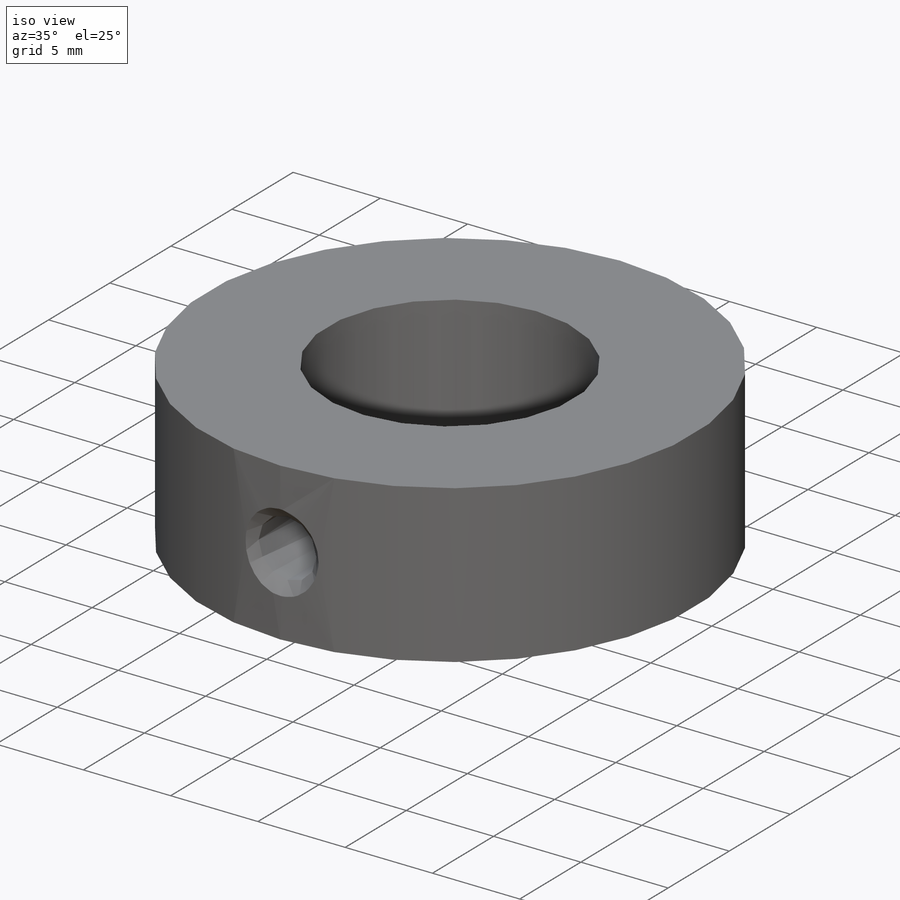
[diagram: iso view]
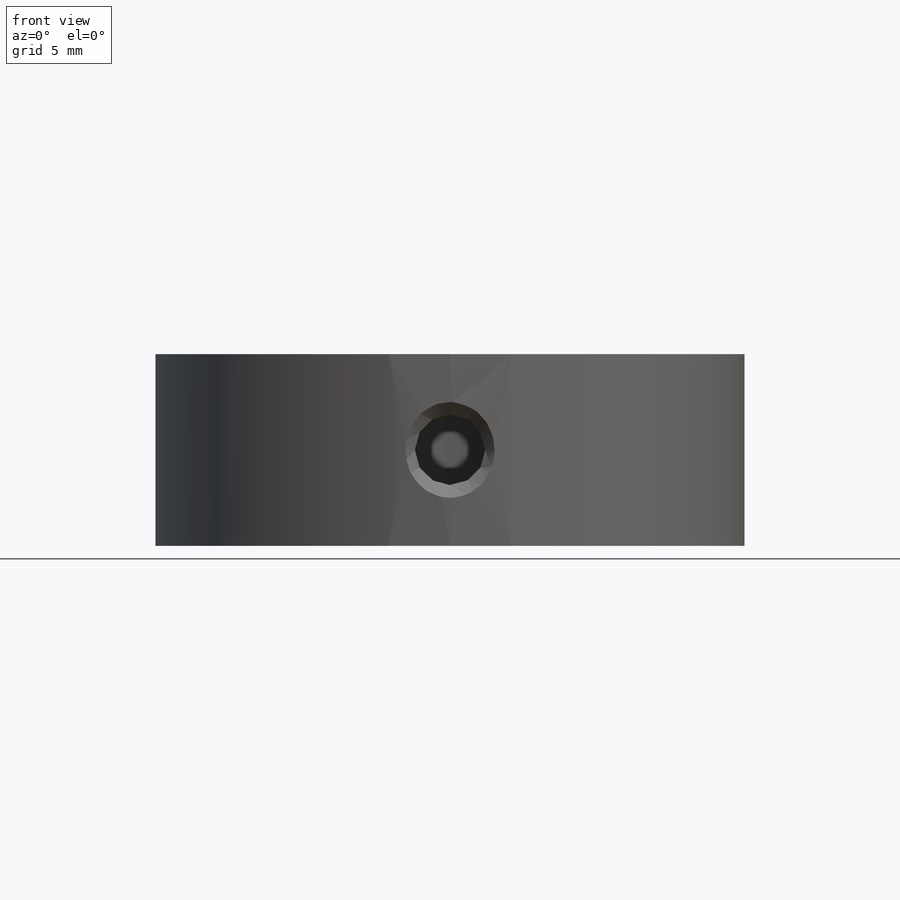
[diagram: front view]
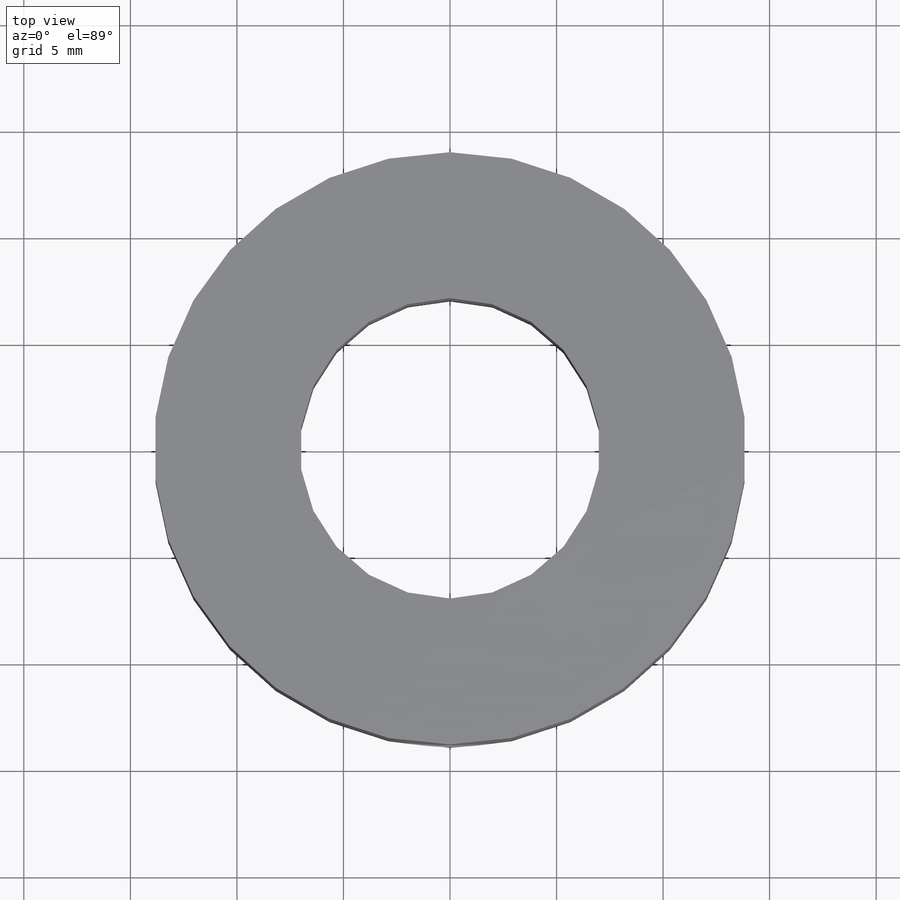
[diagram: top view]
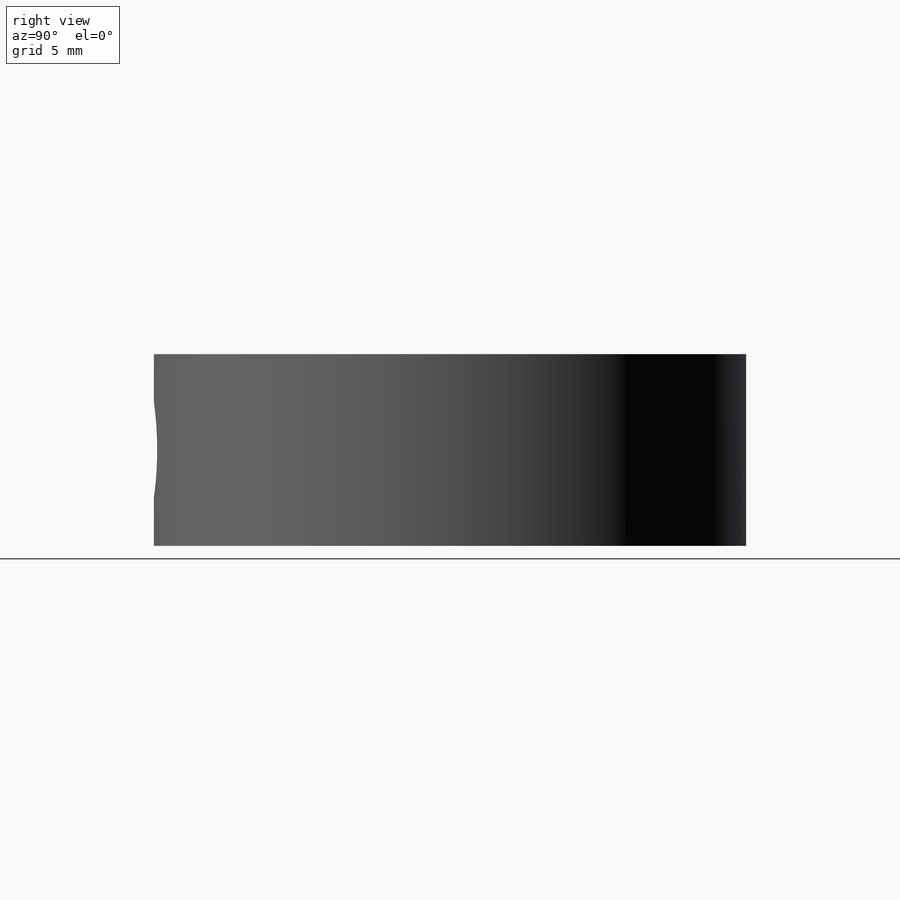
[diagram: right view]
SOLIDWORKS PART (.sldprt)
format: sldprt  version: not decoded by parser v0  size: 149,504 bytes
history: native  units: mm
features: plane x3, sketch x3, material x1, extrude x1, hole x1, thread x1 (+8 scaffold rows collapsed)
feature tree (18):
  scaffold x8  (default folders/planes/origin — collapsed)
  material  "Matériau <non spécifié>"
  plane  "Plan de face"
  plane  "Plan de dessus"
  plane  "Plan de droite"
  sketch  "Esquisse1"  dims[D1=6.95mm]
  extrude  "Boss.-Extru.1"  Depth=9mm
  hole  "Trou taraudé M41"  Diameter=3.3mm Depth=6.85mm
  sketch  "Esquisse3D11"
  sketch  "Esquisse17"  dims[hole-wizard template sketch: 54 standard entries collapsed; hole parameters kept: c17.Diamètre du trou pour taraudage jusqu'au prochain=3.3mm c17.Profondeur du trou pour taraudage jusqu'au prochain=6.85mm c17.Diamètre du fraisage entrant=4.5mm c17.D4=~3.666174mm c17.Angle du fraisage entrant=90.0deg]
  thread  "Filetage de perçage1"  Diameter=4mm  [1 undecoded]
decode coverage: 5 of 6 modeling features carry decoded parameters
note: ~ marks probable driven/reference dimensions
note: 1 parameter value undecoded
note: suppression state not decoded; provenance and decode notes live in map.json
